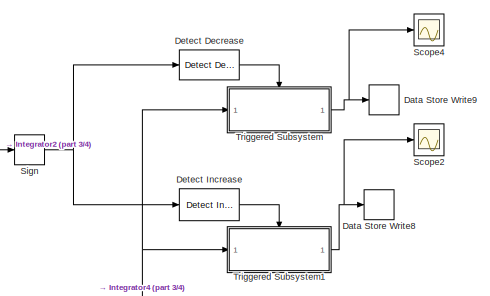
[diagram: root canvas - part 1/4, top left region]
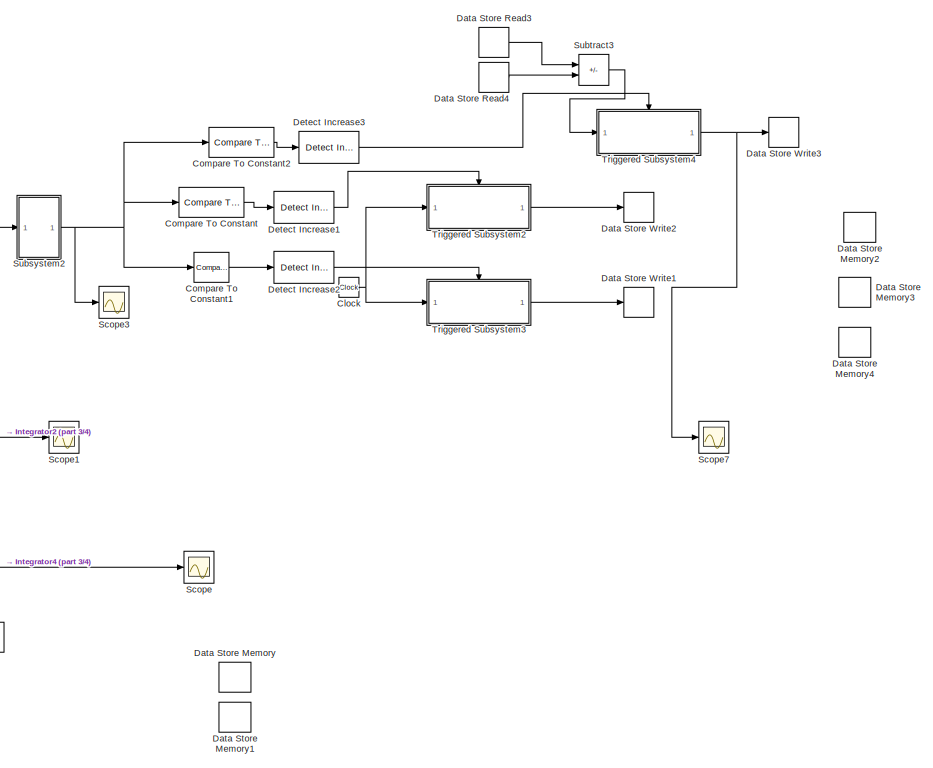
[diagram: root canvas - part 2/4, middle right region]
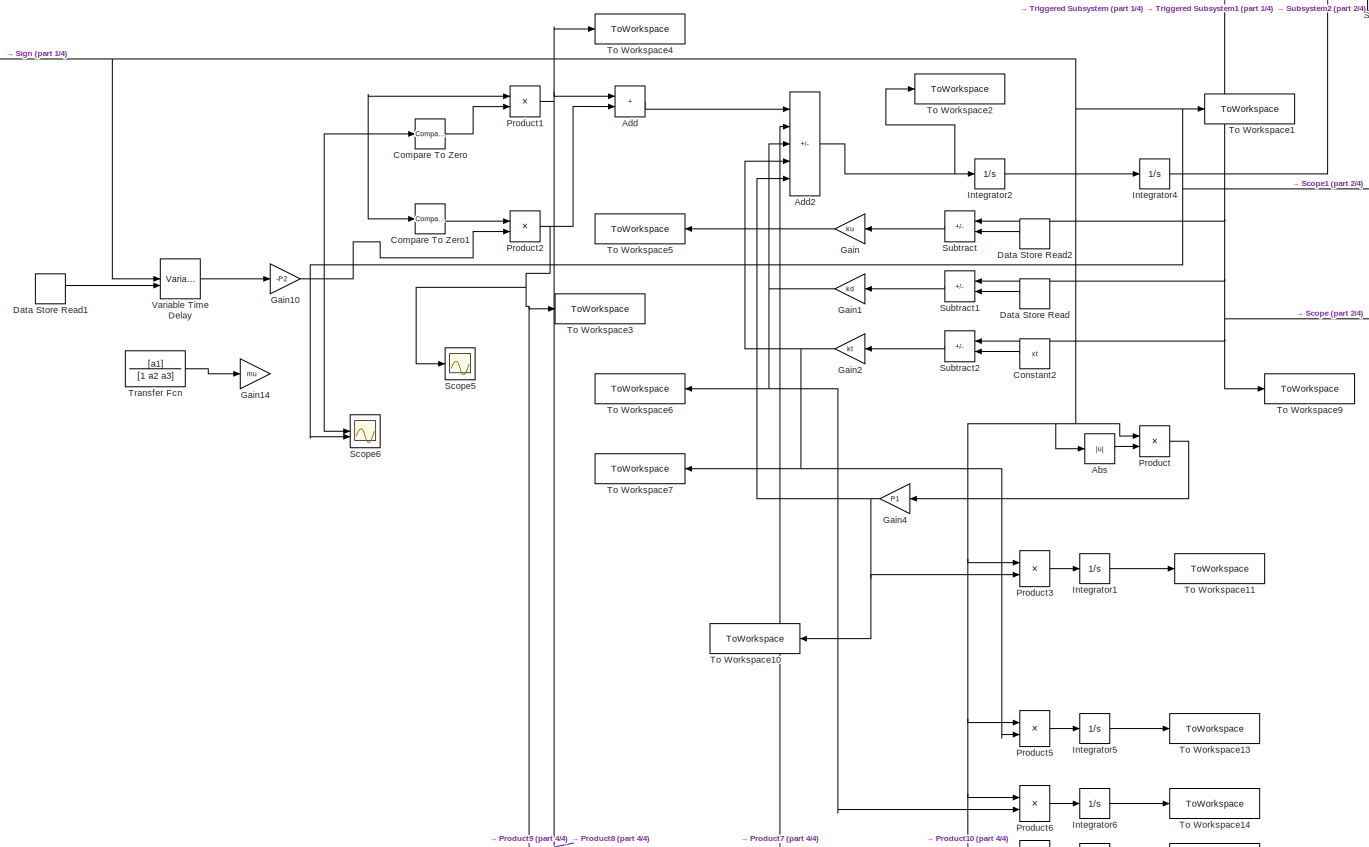
[diagram: root canvas - part 3/4, central region]
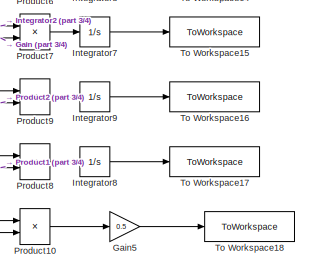
[diagram: root canvas - part 4/4, bottom center region]
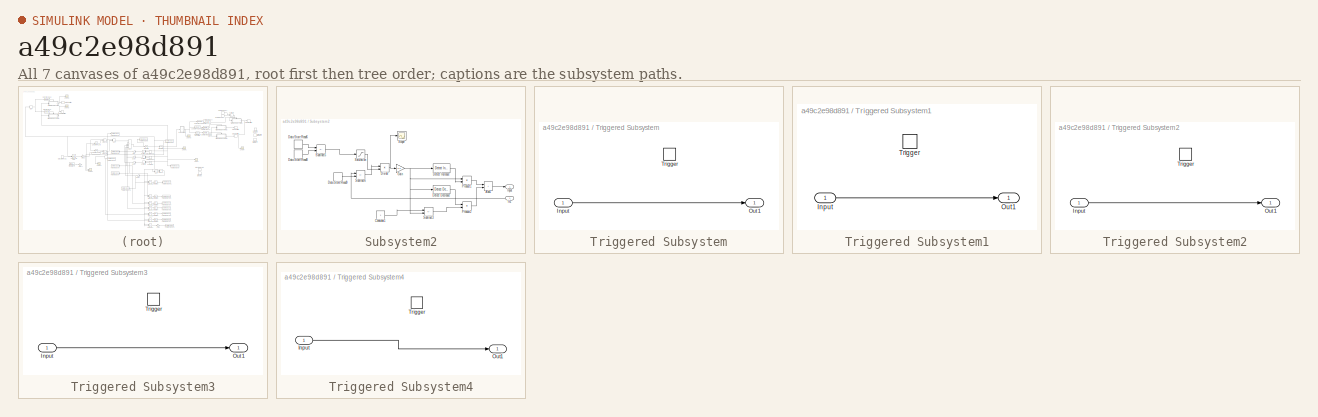
[diagram: thumbnail index - all 7 canvases of the model, root first then tree order]
MODEL slx_a49c2e98d891
KIND model
CONFIG AbsTol = auto
CONFIG EnableMultiTasking = off
CONFIG FixedStep = dt
CONFIG MaxStep = dt
CONFIG MinStep = auto
CONFIG RelTol = 1e-6
CONFIG SampleTimeConstraint = Unconstrained
CONFIG SolverName = VariableStepAuto
CONFIG StartTime = 0.0
CONFIG StopTime = 2000
BLOCK [Abs] Abs
  SaturateOnIntegerOverflow = off
BLOCK [Sum] Add
  IconShape = rectangular
BLOCK [Sum] Add2
  IconShape = rectangular
  Inputs = +----
BLOCK [Clock] Clock
BLOCK [Reference] Compare To Constant  REF=simulink/Logic and Bit
Operations/Compare
To Constant
  SourceBlock = simulink/Logic and Bit\nOperations/Compare\nTo Constant
  SourceType = Compare To Constant
BLOCK [Reference] Compare To Constant1  REF=simulink/Logic and Bit
Operations/Compare
To Constant
  SourceBlock = simulink/Logic and Bit\nOperations/Compare\nTo Constant
  SourceType = Compare To Constant
BLOCK [Reference] Compare To Constant2  REF=simulink/Logic and Bit
Operations/Compare
To Constant
  SourceBlock = simulink/Logic and Bit\nOperations/Compare\nTo Constant
  SourceType = Compare To Constant
BLOCK [Reference] Compare To Zero  REF=simulink/Logic and Bit
Operations/Compare
To Zero
  SourceBlock = simulink/Logic and Bit\nOperations/Compare\nTo Zero
  SourceType = Compare To Zero
BLOCK [Reference] Compare To Zero1  REF=simulink/Logic and Bit
Operations/Compare
To Zero
  SourceBlock = simulink/Logic and Bit\nOperations/Compare\nTo Zero
  SourceType = Compare To Zero
BLOCK [Constant] Constant2
  Value = xt
BLOCK [DataStoreMemory] Data Store Memory
  DataStoreName = xu
  ShowAdditionalParam = off
BLOCK [DataStoreMemory] Data Store Memory1
  DataStoreName = xd
  ShowAdditionalParam = off
BLOCK [DataStoreMemory] Data Store Memory2
  DataStoreName = t0sim
  ShowAdditionalParam = off
BLOCK [DataStoreMemory] Data Store Memory3
  DataStoreName = stime
  ShowAdditionalParam = off
BLOCK [DataStoreMemory] Data Store Memory4
  DataStoreName = etime
  ShowAdditionalParam = off
BLOCK [DataStoreRead] Data Store Read
  DataStoreName = xd
  IndexOptions = Index vector (dialog)
  Indices = 1
  OutputSizes = 1
BLOCK [DataStoreRead] Data Store Read1
  DataStoreName = t0sim
  IndexOptions = Index vector (dialog)
  Indices = 1
  OutputSizes = 1
BLOCK [DataStoreRead] Data Store Read2
  DataStoreName = xu
  IndexOptions = Index vector (dialog)
  Indices = 1
  OutputSizes = 1
BLOCK [DataStoreRead] Data Store Read3
  DataStoreName = etime
  IndexOptions = Index vector (dialog)
  Indices = 1
  OutputSizes = 1
BLOCK [DataStoreRead] Data Store Read4
  DataStoreName = stime
  IndexOptions = Index vector (dialog)
  Indices = 1
  OutputSizes = 1
BLOCK [DataStoreWrite] Data Store Write1
  DataStoreName = stime
  IndexOptions = Index vector (dialog)
  Indices = 1
  OutputSizes = 1
BLOCK [DataStoreWrite] Data Store Write2
  DataStoreName = etime
  IndexOptions = Index vector (dialog)
  Indices = 1
  OutputSizes = 1
BLOCK [DataStoreWrite] Data Store Write3
  DataStoreName = t0sim
  IndexOptions = Index vector (dialog)
  Indices = 1
  OutputSizes = 1
BLOCK [DataStoreWrite] Data Store Write8
  DataStoreName = xu
  IndexOptions = Index vector (dialog)
  Indices = 1
  OutputSizes = 1
BLOCK [DataStoreWrite] Data Store Write9
  DataStoreName = xd
  IndexOptions = Index vector (dialog)
  Indices = 1
  OutputSizes = 1
BLOCK [Reference] Detect Decrease  REF=simulink/Logic and Bit
Operations/Detect
Decrease
  SourceBlock = simulink/Logic and Bit\nOperations/Detect\nDecrease
  SourceType = Detect Decrease
BLOCK [Reference] Detect Increase  REF=simulink/Logic and Bit
Operations/Detect
Increase
  SourceBlock = simulink/Logic and Bit\nOperations/Detect\nIncrease
  SourceType = Detect Increase
BLOCK [Reference] Detect Increase1  REF=simulink/Logic and Bit
Operations/Detect
Increase
  SourceBlock = simulink/Logic and Bit\nOperations/Detect\nIncrease
  SourceType = Detect Increase
BLOCK [Reference] Detect Increase2  REF=simulink/Logic and Bit
Operations/Detect
Increase
  SourceBlock = simulink/Logic and Bit\nOperations/Detect\nIncrease
  SourceType = Detect Increase
BLOCK [Reference] Detect Increase3  REF=simulink/Logic and Bit
Operations/Detect
Increase
  SourceBlock = simulink/Logic and Bit\nOperations/Detect\nIncrease
  SourceType = Detect Increase
BLOCK [Gain] Gain
  Gain = ku
BLOCK [Gain] Gain1
  Gain = kd
BLOCK [Gain] Gain10
  Gain = -P2
BLOCK [Gain] Gain14
  Commented = on
  Gain = mu
BLOCK [Gain] Gain2
  Gain = kt
BLOCK [Gain] Gain4
  Gain = P1
BLOCK [Gain] Gain5
  Gain = 0.5
BLOCK [Integrator] Integrator1
BLOCK [Integrator] Integrator2
  InitialCondition = 0.1
BLOCK [Integrator] Integrator4
BLOCK [Integrator] Integrator5
BLOCK [Integrator] Integrator6
BLOCK [Integrator] Integrator7
BLOCK [Integrator] Integrator8
BLOCK [Integrator] Integrator9
BLOCK [Product] Product
BLOCK [Product] Product1
BLOCK [Product] Product10
BLOCK [Product] Product2
BLOCK [Product] Product3
BLOCK [Product] Product5
BLOCK [Product] Product6
BLOCK [Product] Product7
BLOCK [Product] Product8
BLOCK [Product] Product9
BLOCK [Scope] Scope
  Floating = off
  NumInputPorts = 1
  ScopeSpecificationString = Simulink.scopes.TimeScopeBlockCfg('CurrentConfiguration', extmgr.ConfigurationSet(extmgr.Configuration('Core','General UI',true),extmgr.Configuration('Core','Source UI',true),extmgr.Configuration('Sources','WiredSimulink',true),extmgr.Configuration('Visuals','Time Domain',true,'SerializedDisplays',{struct('MinYLimReal','-1.33094','MaxYLimReal','1.33699','YLabelReal','','MinYLimMag','0.00000','MaxY...<+1728ch>
BLOCK [Scope] Scope1
  Floating = off
  NumInputPorts = 1
  ScopeSpecificationString = Simulink.scopes.TimeScopeBlockCfg('CurrentConfiguration', extmgr.ConfigurationSet(extmgr.Configuration('Core','General UI',true),extmgr.Configuration('Core','Source UI',true),extmgr.Configuration('Sources','WiredSimulink',true,'DataLoggingVariableName','ScopeData1'),extmgr.Configuration('Visuals','Time Domain',true,'SerializedDisplays',{struct('MinYLimReal','-1.08789','MaxYLimReal','1.09622','YLab...<+1416ch>
BLOCK [Scope] Scope2
  Floating = off
  NumInputPorts = 1
  ScopeSpecificationString = Simulink.scopes.TimeScopeBlockCfg('CurrentConfiguration', extmgr.ConfigurationSet(extmgr.Configuration('Core','General UI',true),extmgr.Configuration('Core','Source UI',true),extmgr.Configuration('Sources','WiredSimulink',true,'DataLoggingVariableName','ScopeData1'),extmgr.Configuration('Visuals','Time Domain',true,'SerializedDisplays',{struct('MinYLimReal','-1.15483','MaxYLimReal','0.12831','YLab...<+1433ch>
BLOCK [Scope] Scope3
  Floating = off
  NumInputPorts = 1
  ScopeSpecificationString = Simulink.scopes.TimeScopeBlockCfg('CurrentConfiguration', extmgr.ConfigurationSet(extmgr.Configuration('Core','General UI',true),extmgr.Configuration('Core','Source UI',true),extmgr.Configuration('Sources','WiredSimulink',true,'DataLoggingVariableName','ScopeData1'),extmgr.Configuration('Visuals','Time Domain',true,'SerializedDisplays',{struct('MinYLimReal','-0.15083','MaxYLimReal','1.14374','YLab...<+1440ch>
BLOCK [Scope] Scope4
  Floating = off
  NumInputPorts = 1
  ScopeSpecificationString = Simulink.scopes.TimeScopeBlockCfg('CurrentConfiguration', extmgr.ConfigurationSet(extmgr.Configuration('Core','General UI',true),extmgr.Configuration('Core','Source UI',true),extmgr.Configuration('Sources','WiredSimulink',true,'DataLoggingVariableName','ScopeData2'),extmgr.Configuration('Visuals','Time Domain',true,'SerializedDisplays',{struct('MinYLimReal','-0.15191','MaxYLimReal','1.36716','YLab...<+1403ch>
BLOCK [Scope] Scope5
  Floating = off
  NumInputPorts = 1
  ScopeSpecificationString = Simulink.scopes.TimeScopeBlockCfg('CurrentConfiguration', extmgr.ConfigurationSet(extmgr.Configuration('Core','General UI',true),extmgr.Configuration('Core','Source UI',true),extmgr.Configuration('Sources','WiredSimulink',true,'DataLoggingVariableName','ScopeData5'),extmgr.Configuration('Visuals','Time Domain',true,'SerializedDisplays',{struct('MinYLimReal','-0.09275','MaxYLimReal','5.09414','YLab...<+1438ch>
BLOCK [Scope] Scope6
  Floating = off
  NumInputPorts = 2
  ScopeSpecificationString = Simulink.scopes.TimeScopeBlockCfg('CurrentConfiguration', extmgr.ConfigurationSet(extmgr.Configuration('Core','General UI',true),extmgr.Configuration('Core','Source UI',true),extmgr.Configuration('Sources','WiredSimulink',true,'DataLoggingVariableName','ScopeData2'),extmgr.Configuration('Visuals','Time Domain',true,'SerializedDisplays',{struct('MinYLimReal','-0.37916','MaxYLimReal','0.3742','YLabe...<+1446ch>
BLOCK [Scope] Scope7
  Floating = off
  NumInputPorts = 1
  ScopeSpecificationString = Simulink.scopes.TimeScopeBlockCfg('CurrentConfiguration', extmgr.ConfigurationSet(extmgr.Configuration('Core','General UI',true),extmgr.Configuration('Core','Source UI',true),extmgr.Configuration('Sources','WiredSimulink',true,'DataLoggingVariableName','ScopeData1'),extmgr.Configuration('Visuals','Time Domain',true,'SerializedDisplays',{struct('MinYLimReal','4.56053','MaxYLimReal','4.59323','YLabe...<+1421ch>
BLOCK [Signum] Sign
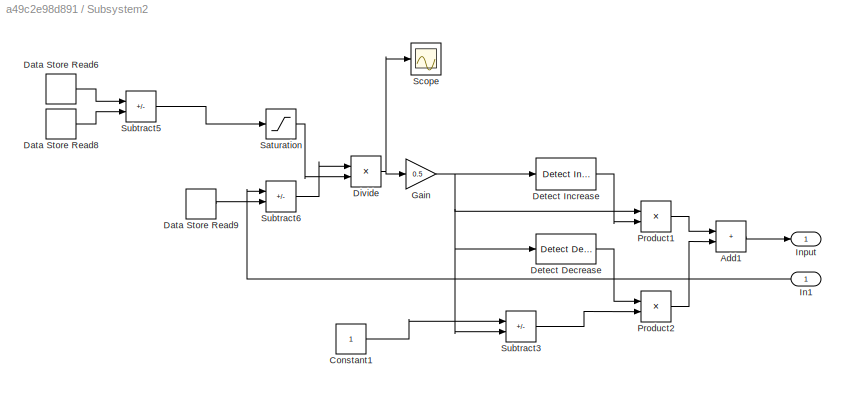
BLOCK [SubSystem] Subsystem2
BLOCK [Sum] Subsystem2/Add1
  IconShape = rectangular
BLOCK [Constant] Subsystem2/Constant1
BLOCK [DataStoreRead] Subsystem2/Data Store Read6
  DataStoreName = xd
  IndexOptions = Index vector (dialog)
  Indices = 1
  OutputSizes = 1
BLOCK [DataStoreRead] Subsystem2/Data Store Read8
  DataStoreName = xu
  IndexOptions = Index vector (dialog)
  Indices = 1
  OutputSizes = 1
BLOCK [DataStoreRead] Subsystem2/Data Store Read9
  DataStoreName = xu
  IndexOptions = Index vector (dialog)
  Indices = 1
  OutputSizes = 1
BLOCK [Reference] Subsystem2/Detect Decrease  REF=simulink/Logic and Bit
Operations/Detect
Decrease
  SourceBlock = simulink/Logic and Bit\nOperations/Detect\nDecrease
  SourceType = Detect Decrease
BLOCK [Reference] Subsystem2/Detect Increase  REF=simulink/Logic and Bit
Operations/Detect
Increase
  SourceBlock = simulink/Logic and Bit\nOperations/Detect\nIncrease
  SourceType = Detect Increase
BLOCK [Product] Subsystem2/Divide
  Inputs = */
BLOCK [Gain] Subsystem2/Gain
  Gain = 0.5
BLOCK [Inport] Subsystem2/In1
BLOCK [Outport] Subsystem2/Input
BLOCK [Product] Subsystem2/Product1
BLOCK [Product] Subsystem2/Product2
BLOCK [Saturate] Subsystem2/Saturation
  LowerLimit = 0.01
  UpperLimit = 100
BLOCK [Scope] Subsystem2/Scope
  Floating = off
  NumInputPorts = 1
  ScopeSpecificationString = Simulink.scopes.TimeScopeBlockCfg('CurrentConfiguration', extmgr.ConfigurationSet(extmgr.Configuration('Core','General UI',true),extmgr.Configuration('Core','Source UI',true),extmgr.Configuration('Sources','WiredSimulink',true,'DataLoggingVariableName','ScopeData2'),extmgr.Configuration('Visuals','Time Domain',true,'SerializedDisplays',{struct('MinYLimReal','-3.418','MaxYLimReal','3.81775','YLabel...<+1432ch>
BLOCK [Sum] Subsystem2/Subtract3
  IconShape = rectangular
  Inputs = +-
BLOCK [Sum] Subsystem2/Subtract5
  IconShape = rectangular
  Inputs = +-
BLOCK [Sum] Subsystem2/Subtract6
  IconShape = rectangular
  Inputs = +-
BLOCK [Sum] Subtract
  IconShape = rectangular
  Inputs = +-
BLOCK [Sum] Subtract1
  IconShape = rectangular
  Inputs = +-
BLOCK [Sum] Subtract2
  IconShape = rectangular
  Inputs = +-
BLOCK [Sum] Subtract3
  IconShape = rectangular
  Inputs = +-
BLOCK [ToWorkspace] To Workspace1
  FixptAsFi = on
  MaxDataPoints = inf
  SampleTime = -1
  SaveFormat = Timeseries
  VariableName = velocity
BLOCK [ToWorkspace] To Workspace10
  FixptAsFi = on
  MaxDataPoints = inf
  SampleTime = -1
  SaveFormat = Timeseries
  VariableName = dampforce_aero
BLOCK [ToWorkspace] To Workspace11
  FixptAsFi = on
  MaxDataPoints = inf
  SampleTime = -1
  SaveFormat = Timeseries
  VariableName = aerowork
BLOCK [ToWorkspace] To Workspace13
  FixptAsFi = on
  MaxDataPoints = inf
  SampleTime = -1
  SaveFormat = Timeseries
  VariableName = tspringwork
BLOCK [ToWorkspace] To Workspace14
  FixptAsFi = on
  MaxDataPoints = inf
  SampleTime = -1
  SaveFormat = Timeseries
  VariableName = dspringwork
BLOCK [ToWorkspace] To Workspace15
  FixptAsFi = on
  MaxDataPoints = inf
  SampleTime = -1
  SaveFormat = Timeseries
  VariableName = uspringwork
BLOCK [ToWorkspace] To Workspace16
  FixptAsFi = on
  MaxDataPoints = inf
  SampleTime = -1
  SaveFormat = Timeseries
  VariableName = posforcework
BLOCK [ToWorkspace] To Workspace17
  FixptAsFi = on
  MaxDataPoints = inf
  SampleTime = -1
  SaveFormat = Timeseries
  VariableName = negforcework
BLOCK [ToWorkspace] To Workspace18
  FixptAsFi = on
  MaxDataPoints = inf
  SampleTime = -1
  SaveFormat = Timeseries
  VariableName = inertiaenergy
BLOCK [ToWorkspace] To Workspace2
  FixptAsFi = on
  MaxDataPoints = inf
  SampleTime = -1
  SaveFormat = Timeseries
  VariableName = accel
BLOCK [ToWorkspace] To Workspace3
  FixptAsFi = on
  MaxDataPoints = inf
  SampleTime = -1
  SaveFormat = Timeseries
  VariableName = posforce
BLOCK [ToWorkspace] To Workspace4
  FixptAsFi = on
  MaxDataPoints = inf
  SampleTime = -1
  SaveFormat = Timeseries
  VariableName = negforce
BLOCK [ToWorkspace] To Workspace5
  FixptAsFi = on
  MaxDataPoints = inf
  SampleTime = -1
  SaveFormat = Timeseries
  VariableName = springforce_u
BLOCK [ToWorkspace] To Workspace6
  FixptAsFi = on
  MaxDataPoints = inf
  SampleTime = -1
  SaveFormat = Timeseries
  VariableName = springforce_d
BLOCK [ToWorkspace] To Workspace7
  FixptAsFi = on
  MaxDataPoints = inf
  SampleTime = -1
  SaveFormat = Timeseries
  VariableName = springforce_t
BLOCK [ToWorkspace] To Workspace9
  FixptAsFi = on
  MaxDataPoints = inf
  SampleTime = -1
  SaveFormat = Timeseries
  VariableName = displacement
BLOCK [TransferFcn] Transfer Fcn
  Commented = on
  Denominator = [1 a2 a3]
  Numerator = [a1]
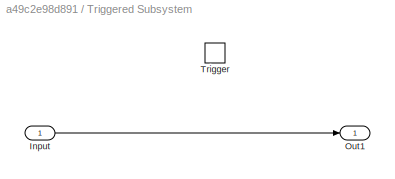
BLOCK [SubSystem] Triggered Subsystem
  TreatAsAtomicUnit = on
BLOCK [Inport] Triggered Subsystem/Input
BLOCK [Outport] Triggered Subsystem/Out1
BLOCK [TriggerPort] Triggered Subsystem/Trigger
  StatesWhenEnabling = held
  VariantControl = (inherit)
BLOCK [SubSystem] Triggered Subsystem1
  TreatAsAtomicUnit = on
BLOCK [Inport] Triggered Subsystem1/Input
BLOCK [Outport] Triggered Subsystem1/Out1
BLOCK [TriggerPort] Triggered Subsystem1/Trigger
  StatesWhenEnabling = held
  VariantControl = (inherit)
BLOCK [SubSystem] Triggered Subsystem2
  TreatAsAtomicUnit = on
BLOCK [Inport] Triggered Subsystem2/Input
BLOCK [Outport] Triggered Subsystem2/Out1
BLOCK [TriggerPort] Triggered Subsystem2/Trigger
  StatesWhenEnabling = held
  VariantControl = (inherit)
BLOCK [SubSystem] Triggered Subsystem3
  TreatAsAtomicUnit = on
BLOCK [Inport] Triggered Subsystem3/Input
BLOCK [Outport] Triggered Subsystem3/Out1
BLOCK [TriggerPort] Triggered Subsystem3/Trigger
  StatesWhenEnabling = held
  VariantControl = (inherit)
BLOCK [SubSystem] Triggered Subsystem4
  TreatAsAtomicUnit = on
BLOCK [Inport] Triggered Subsystem4/Input
BLOCK [Outport] Triggered Subsystem4/Out1
BLOCK [TriggerPort] Triggered Subsystem4/Trigger
  StatesWhenEnabling = held
  VariantControl = (inherit)
BLOCK [VariableTransportDelay] Variable Time Delay
  MaximumDelay = 10
  ZeroDelay = on
LINE Abs:1 -> Product:2
NET Add2:1 -> Integrator2:1, To Workspace2:1
LINE Add:1 -> Add2:1
NET Clock:1 -> Triggered Subsystem2:1, Triggered Subsystem3:1
LINE Compare To Constant1:1 -> Detect Increase2:1
LINE Compare To Constant2:1 -> Detect Increase3:1
LINE Compare To Constant:1 -> Detect Increase1:1
LINE Compare To Zero1:1 -> Product2:1
LINE Compare To Zero:1 -> Product1:2
LINE Constant2:1 -> Subtract2:2
LINE Data Store Read1:1 -> Variable Time Delay:2
LINE Data Store Read2:1 -> Subtract:2
LINE Data Store Read3:1 -> Subtract3:1
LINE Data Store Read4:1 -> Subtract3:2
LINE Data Store Read:1 -> Subtract1:2
LINE Detect Decrease:1 -> Triggered Subsystem:trigger
LINE Detect Increase1:1 -> Triggered Subsystem2:trigger
LINE Detect Increase2:1 -> Triggered Subsystem3:trigger
LINE Detect Increase3:1 -> Triggered Subsystem4:trigger
LINE Detect Increase:1 -> Triggered Subsystem1:trigger
NET Gain10:1 -> Compare To Zero1:1, Compare To Zero:1, Product1:1, Product2:2, Scope6:1
NET Gain1:1 -> Add2:3, Product6:2, To Workspace6:1
NET Gain2:1 -> Add2:4, Product5:2, To Workspace7:1
NET Gain4:1 -> Add2:5, Product3:2, To Workspace10:1
LINE Gain5:1 -> To Workspace18:1
NET Gain:1 -> Add2:2, Product7:2, To Workspace5:1
LINE Integrator1:1 -> To Workspace11:1
NET Integrator2:1 -> Abs:1, Integrator4:1, Product10:1, Product10:2, Product3:1, Product5:1, Product6:1, Product7:1, Product8:1, Product9:1, Product:1, Scope1:1, Scope6:2, Sign:1, To Workspace1:1, Variable Time Delay:1
NET Integrator4:1 -> Scope:1, Subsystem2:1, Subtract1:1, Subtract2:1, Subtract:1, To Workspace9:1, Triggered Subsystem1:1, Triggered Subsystem:1
LINE Integrator5:1 -> To Workspace13:1
LINE Integrator6:1 -> To Workspace14:1
LINE Integrator7:1 -> To Workspace15:1
LINE Integrator8:1 -> To Workspace17:1
LINE Integrator9:1 -> To Workspace16:1
LINE Product10:1 -> Gain5:1
NET Product1:1 -> Add:1, Product8:2, To Workspace4:1
NET Product2:1 -> Add:2, Product9:2, Scope5:1, To Workspace3:1
LINE Product3:1 -> Integrator1:1
LINE Product5:1 -> Integrator5:1
LINE Product6:1 -> Integrator6:1
LINE Product7:1 -> Integrator7:1
LINE Product8:1 -> Integrator8:1
LINE Product9:1 -> Integrator9:1
LINE Product:1 -> Gain4:1
NET Sign:1 -> Detect Decrease:1, Detect Increase:1
LINE Subsystem2/Add1:1 -> Subsystem2/Input:1
LINE Subsystem2/Constant1:1 -> Subsystem2/Subtract3:1
LINE Subsystem2/Data Store Read6:1 -> Subsystem2/Subtract5:1
LINE Subsystem2/Data Store Read8:1 -> Subsystem2/Subtract5:2
LINE Subsystem2/Data Store Read9:1 -> Subsystem2/Subtract6:2
LINE Subsystem2/Detect Decrease:1 -> Subsystem2/Product2:1
LINE Subsystem2/Detect Increase:1 -> Subsystem2/Product1:2
NET Subsystem2/Divide:1 -> Subsystem2/Gain:1, Subsystem2/Scope:1
NET Subsystem2/Gain:1 -> Subsystem2/Detect Decrease:1, Subsystem2/Detect Increase:1, Subsystem2/Product1:1, Subsystem2/Subtract3:2
LINE Subsystem2/In1:1 -> Subsystem2/Subtract6:1
LINE Subsystem2/Product1:1 -> Subsystem2/Add1:1
LINE Subsystem2/Product2:1 -> Subsystem2/Add1:2
LINE Subsystem2/Saturation:1 -> Subsystem2/Divide:2
LINE Subsystem2/Subtract3:1 -> Subsystem2/Product2:2
LINE Subsystem2/Subtract5:1 -> Subsystem2/Saturation:1
LINE Subsystem2/Subtract6:1 -> Subsystem2/Divide:1
NET Subsystem2:1 -> Compare To Constant1:1, Compare To Constant2:1, Compare To Constant:1, Scope3:1
LINE Subtract1:1 -> Gain1:1
LINE Subtract2:1 -> Gain2:1
LINE Subtract3:1 -> Triggered Subsystem4:1
LINE Subtract:1 -> Gain:1
LINE Transfer Fcn:1 -> Gain14:1
LINE Triggered Subsystem/Input:1 -> Triggered Subsystem/Out1:1
LINE Triggered Subsystem1/Input:1 -> Triggered Subsystem1/Out1:1
NET Triggered Subsystem1:1 -> Data Store Write8:1, Scope2:1
LINE Triggered Subsystem2/Input:1 -> Triggered Subsystem2/Out1:1
LINE Triggered Subsystem2:1 -> Data Store Write2:1
LINE Triggered Subsystem3/Input:1 -> Triggered Subsystem3/Out1:1
LINE Triggered Subsystem3:1 -> Data Store Write1:1
LINE Triggered Subsystem4/Input:1 -> Triggered Subsystem4/Out1:1
NET Triggered Subsystem4:1 -> Data Store Write3:1, Scope7:1
NET Triggered Subsystem:1 -> Data Store Write9:1, Scope4:1
LINE Variable Time Delay:1 -> Gain10:1
note: NET lines group one-source signal fan-out (src -> all destinations, sorted); 1:1 wires keep LINE
